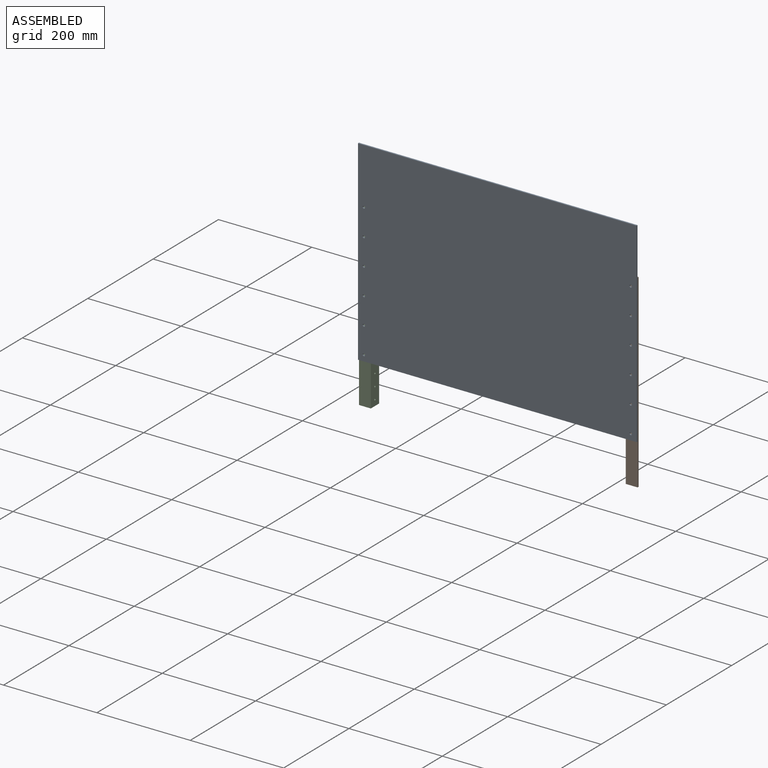
[diagram: assembled view]
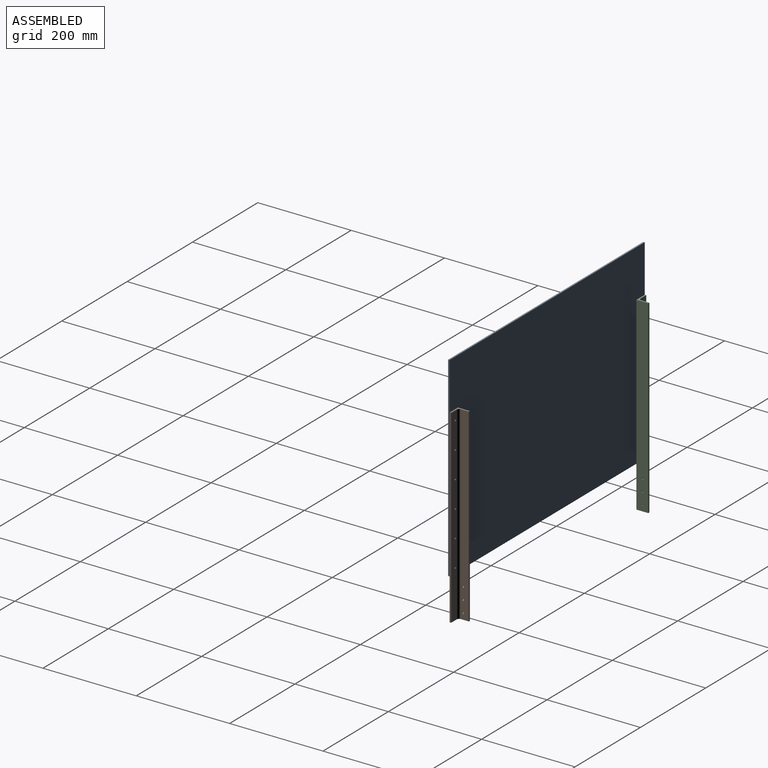
[diagram: assembled view, second angle]
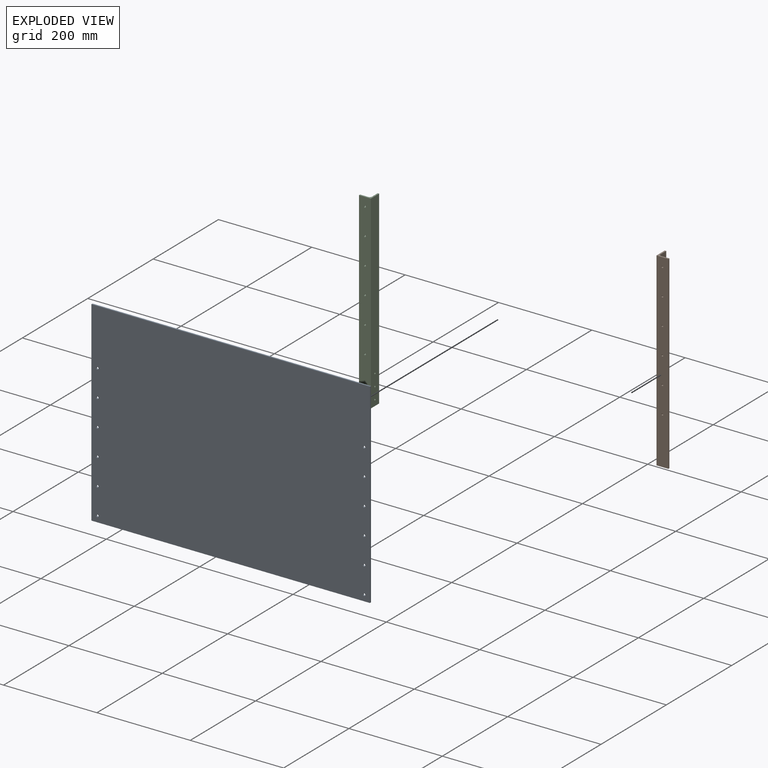
[diagram: exploded view]
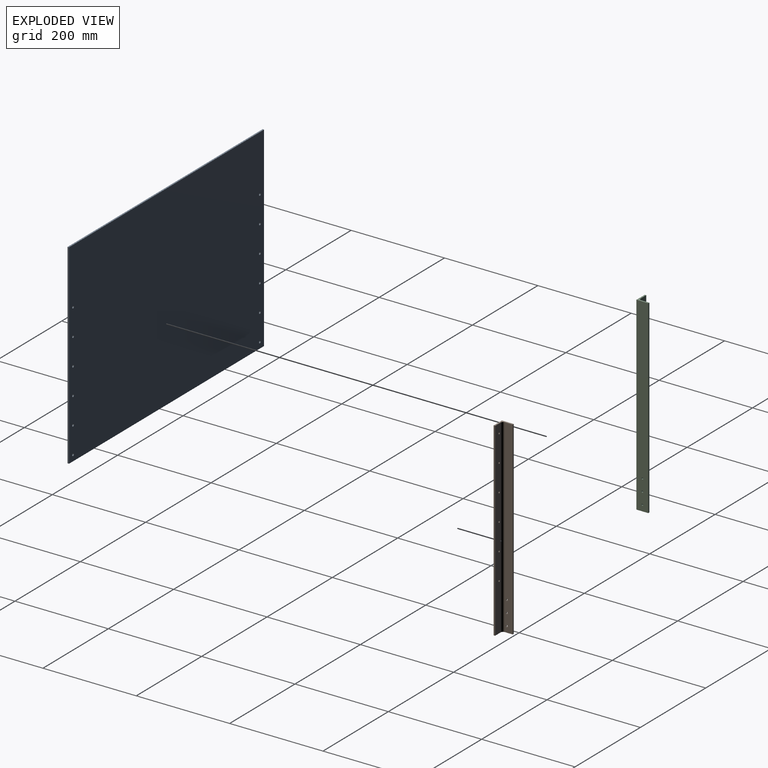
[diagram: exploded view, second angle]
ASSEMBLY  parts=3 mates=2
PART A: 18 faces, bbox 596.9x419.1x3.2 mm
  f0: plane 419.1x3.18mm, normal (-1,0,0), area 1330.6mm2, adj f1,f5,f16,f17
  f1: plane 596.9x3.18mm, normal (0,-1,0), area 1895.2mm2, adj f0,f2,f16,f17
  f2: plane 419.1x3.18mm, normal (1,0,0), area 1330.6mm2, adj f1,f5,f16,f17
  f3: cylinder r=2.55mm len=5.11mm, axis (0,0,-1), area 50.9mm2, adj f16,f17
  f4: cylinder r=2.55mm len=5.11mm, axis (0,0,-1), area 50.9mm2, adj f16,f17
  f5: plane 596.9x3.18mm, normal (0,1,0), area 1895.2mm2, adj f0,f2,f16,f17
  f6: cylinder r=2.55mm len=5.11mm, axis (0,0,-1), area 50.9mm2, adj f16,f17
  f7: cylinder r=2.55mm len=5.11mm, axis (0,0,-1), area 50.9mm2, adj f16,f17
  f8: cylinder r=2.55mm len=5.11mm, axis (0,0,-1), area 50.9mm2, adj f16,f17
  f9: cylinder r=2.55mm len=5.11mm, axis (0,0,-1), area 50.9mm2, adj f16,f17
  f10: cylinder r=2.55mm len=5.11mm, axis (0,0,-1), area 50.9mm2, adj f16,f17
  f11: cylinder r=2.55mm len=5.11mm, axis (0,0,-1), area 50.9mm2, adj f16,f17
  f12: cylinder r=2.55mm len=5.11mm, axis (0,0,-1), area 50.9mm2, adj f16,f17
  f13: cylinder r=2.55mm len=5.11mm, axis (0,0,-1), area 50.9mm2, adj f16,f17
  f14: cylinder r=2.55mm len=5.11mm, axis (0,0,-1), area 50.9mm2, adj f16,f17
  f15: cylinder r=2.55mm len=5.11mm, axis (0,0,-1), area 50.9mm2, adj f16,f17
  f16: plane 596.9x419.1mm, normal (0,0,1), area 249915.1mm2, adj f0,f1,f2,f3,f4,f5,f6,f7
  f17: plane 596.9x419.1mm, normal (0,0,-1), area 249915.1mm2, adj f0,f1,f2,f3,f4,f5,f6,f7
PART B: 18 faces, bbox 25.4x25.4x406.4 mm
  f0: plane 406.4x3.18mm, normal (0,-1,0), area 1290.3mm2, adj f1,f5,f6,f7
  f1: plane 406.4x17.15mm, normal (-1,0,0), area 6933.5mm2, adj f0,f6,f7,f8,f9,f10,f11
  f2: plane 406.4x17.15mm, normal (0,-1,0), area 6908.1mm2, adj f3,f6,f7,f8,f12,f13,f14,f15
  f3: plane 406.4x3.18mm, normal (-1,0,0), area 1290.3mm2, adj f2,f4,f6,f7
  f4: plane 406.4x25.4mm, normal (0,1,0), area 10263mm2, adj f3,f5,f6,f7,f12,f13,f14,f15
  f5: plane 406.4x25.4mm, normal (1,0,0), area 10288.4mm2, adj f0,f4,f6,f7,f9,f10,f11
  f6: plane 25.4x25.4mm, normal (0,0,1), area 156.7mm2, adj f0,f1,f2,f3,f4,f5,f8
  f7: plane 25.4x25.4mm, normal (0,0,-1), area 156.7mm2, adj f0,f1,f2,f3,f4,f5,f8
  f8: cylinder r=5.08mm len=406.4mm, axis (0,0,1), area 3242.9mm2, adj f1,f2,f6,f7
  f9: cylinder r=1.91mm len=3.81mm, axis (1,0,0), area 38mm2, adj f1,f5
  f10: cylinder r=1.91mm len=3.81mm, axis (1,0,0), area 38mm2, adj f1,f5
  f11: cylinder r=1.91mm len=3.81mm, axis (1,0,0), area 38mm2, adj f1,f5
  f12: cylinder r=1.78mm len=3.56mm, axis (0,1,0), area 35.5mm2, adj f2,f4
  f13: cylinder r=1.78mm len=3.56mm, axis (0,1,0), area 35.5mm2, adj f2,f4
  f14: cylinder r=1.78mm len=3.56mm, axis (0,1,0), area 35.5mm2, adj f2,f4
  f15: cylinder r=1.78mm len=3.56mm, axis (0,1,0), area 35.5mm2, adj f2,f4
  f16: cylinder r=1.78mm len=3.56mm, axis (0,1,0), area 35.5mm2, adj f2,f4
  f17: cylinder r=1.78mm len=3.56mm, axis (0,1,0), area 35.5mm2, adj f2,f4
PART C: 18 faces, bbox 25.4x25.4x406.4 mm
  f0: plane 406.4x3.18mm, normal (0,-1,0), area 1290.3mm2, adj f1,f5,f6,f7
  f1: plane 406.4x17.15mm, normal (1,0,0), area 6933.5mm2, adj f0,f6,f7,f8,f9,f10,f11
  f2: plane 406.4x17.15mm, normal (0,-1,0), area 6908.1mm2, adj f3,f6,f7,f8,f12,f13,f14,f15
  f3: plane 406.4x3.18mm, normal (1,0,0), area 1290.3mm2, adj f2,f4,f6,f7
  f4: plane 406.4x25.4mm, normal (0,1,0), area 10263mm2, adj f3,f5,f6,f7,f12,f13,f14,f15
  f5: plane 406.4x25.4mm, normal (-1,0,0), area 10288.4mm2, adj f0,f4,f6,f7,f9,f10,f11
  f6: plane 25.4x25.4mm, normal (0,0,1), area 156.7mm2, adj f0,f1,f2,f3,f4,f5,f8
  f7: plane 25.4x25.4mm, normal (0,0,-1), area 156.7mm2, adj f0,f1,f2,f3,f4,f5,f8
  f8: cylinder r=5.08mm len=406.4mm, axis (0,0,1), area 3242.9mm2, adj f1,f2,f6,f7
  f9: cylinder r=1.91mm len=3.81mm, axis (-1,0,0), area 38mm2, adj f1,f5
  f10: cylinder r=1.91mm len=3.81mm, axis (-1,0,0), area 38mm2, adj f1,f5
  f11: cylinder r=1.91mm len=3.81mm, axis (-1,0,0), area 38mm2, adj f1,f5
  f12: cylinder r=1.78mm len=3.56mm, axis (0,1,0), area 35.5mm2, adj f2,f4
  f13: cylinder r=1.78mm len=3.56mm, axis (0,1,0), area 35.5mm2, adj f2,f4
  f14: cylinder r=1.78mm len=3.56mm, axis (0,1,0), area 35.5mm2, adj f2,f4
  f15: cylinder r=1.78mm len=3.56mm, axis (0,1,0), area 35.5mm2, adj f2,f4
  f16: cylinder r=1.78mm len=3.56mm, axis (0,1,0), area 35.5mm2, adj f2,f4
  f17: cylinder r=1.78mm len=3.56mm, axis (0,1,0), area 35.5mm2, adj f2,f4
PLACE A rot(axis=(1,0,0),90deg) t=(-459.36,290.08,452.1)mm fixed
PLACE B rot(axis=(0,0,1),180deg) t=(-212.42,335.06,-53.72)mm
PLACE C rot(axis=(0,0,1),180deg) t=(-674.17,335.06,-53.72)mm
MATE fastened B.f17 <-> A.f12  axis (0,-1,0) through (-157.55,290.08,47.88)mm
MATE fastened C.f17 <-> A.f6  axis (0,-1,0) through (-729.05,290.08,47.88)mm
